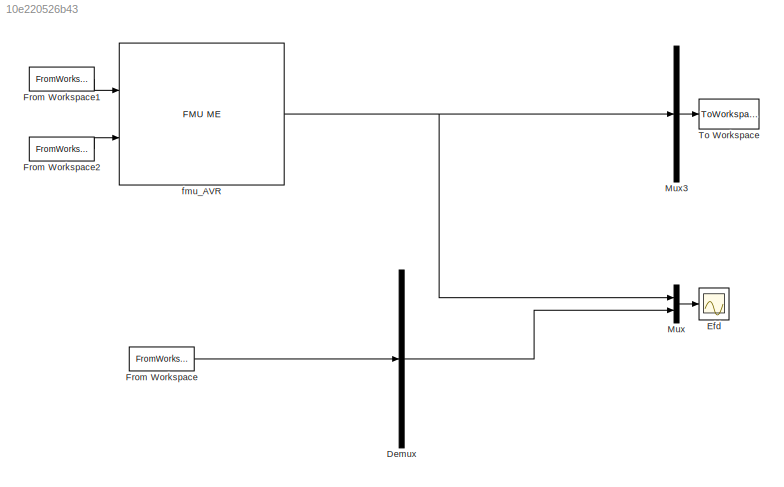
MODEL slx_10e220526b43
KIND model
CONFIG AbsTol = auto
CONFIG EnableMultiTasking = on
CONFIG FixedStep = 0.01
CONFIG MaxStep = auto
CONFIG MinStep = auto
CONFIG RelTol = 0.001
CONFIG SampleTimeConstraint = Unconstrained
CONFIG Solver = ode45
CONFIG SolverName = ode45
CONFIG StartTime = 0
CONFIG StopTime = 10
BLOCK [Demux] Demux
  Outputs = 1
  Ports = [1, 1]
BLOCK [Scope] Efd
  Floating = off
  NumInputPorts = 1
  Ports = [1]
  ScopeSpecificationString = Simulink.scopes.TimeScopeBlockCfg('CurrentConfiguration', extmgr.ConfigurationSet(extmgr.Configuration('Core','General UI',true,'FigureColor',[1 1 1]),extmgr.Configuration('Core','Source UI',true),extmgr.Configuration('Sources','WiredSimulink',true),extmgr.Configuration('Visuals','Time Domain',true,'SerializedDisplays',{struct('MinYLimReal','-4.74546','MaxYLimReal','3.36306','YLabelReal','','MinYL...<+1400ch>
BLOCK [FromWorkspace] From Workspace
  VariableName = dataMeasuredS
BLOCK [FromWorkspace] From Workspace1
  VariableName = inputSignalS(:,[1,2])
BLOCK [FromWorkspace] From Workspace2
  VariableName = inputSignalS(:,[1,3])
BLOCK [Mux] Mux
  DisplayOption = bar
  Inputs = 2
  Ports = [2, 1]
BLOCK [Mux] Mux3
  DisplayOption = bar
  Inputs = 1
  Ports = [1, 1]
BLOCK [ToWorkspace] To Workspace
  MaxDataPoints = inf
  Ports = [1]
  SampleTime = 0.5
  SaveFormat = Structure With Time
  VariableName = simout
BLOCK [Reference] fmu_AVR  REF=fmu_me_lib/FMU ME
  Description = Simulates an FMU for Model Exchange 1.0 or Model Exchange 2.0.
  Ports = [2, 1]
  SourceBlock = fmu_me_lib/FMU ME
  UserDataPersistent = on
LINE Demux:1 -> Mux:2
LINE From Workspace1:1 -> fmu_AVR:1
LINE From Workspace2:1 -> fmu_AVR:2
LINE From Workspace:1 -> Demux:1
LINE Mux3:1 -> To Workspace:1
LINE Mux:1 -> Efd:1
NET fmu_AVR:1 -> Mux3:1, Mux:1
note: NET lines group one-source signal fan-out (src -> all destinations, sorted); 1:1 wires keep LINE
